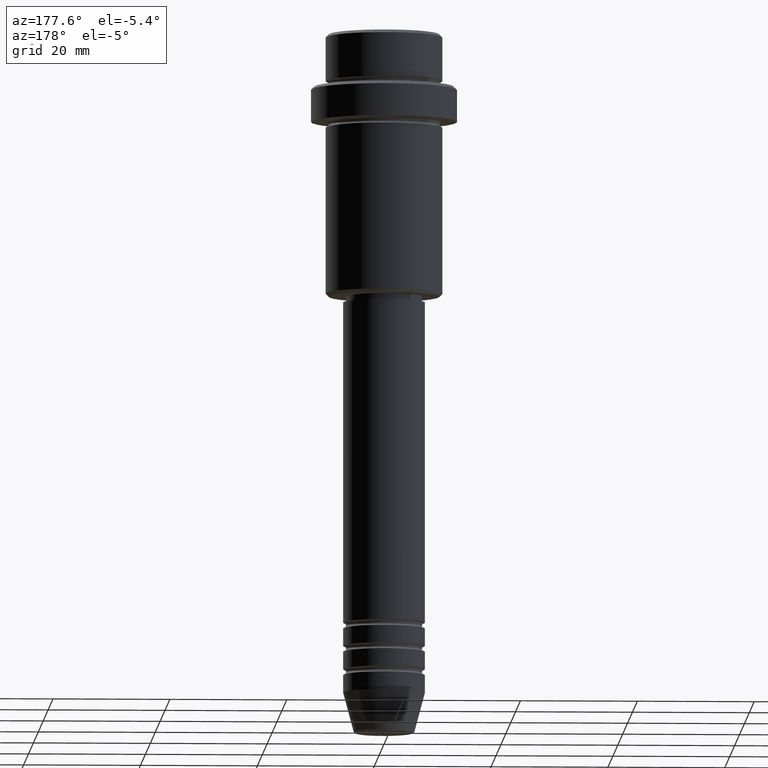
[diagram: clean part render]
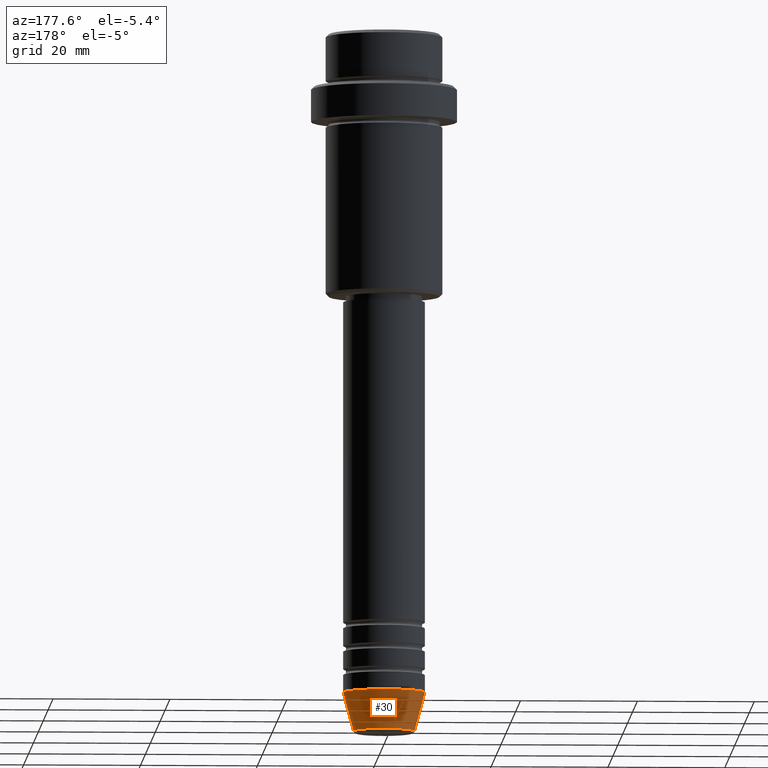
[diagram: same view with one face highlighted and labeled with its STEP entity id]
A machine part, auxiliary view. The second image highlights one B-rep face of the part: STEP entity #30.
In plain terms, the highlighted conical surface has half-angle 15 deg.
Its self-contained STEP definition (entity closure, byte-faithful):
#20 = ORIENTED_EDGE ( 'NONE', *, *, #736, .T. ) ;
#30 = ADVANCED_FACE ( 'NONE', ( #274 ), #979, .T. ) ;
#37 = EDGE_CURVE ( 'NONE', #141, #785, #720, .T. ) ;
#141 = VERTEX_POINT ( 'NONE', #1243 ) ;
#150 = CARTESIAN_POINT ( 'NONE',  ( -7.000000000000000000, 8.572527594031473190E-16, -112.9999999999999858 ) ) ;
#207 = VECTOR ( 'NONE', #699, 1000.000000000000000 ) ;
#210 = VECTOR ( 'NONE', #1263, 1000.000000000000000 ) ;
#274 = FACE_OUTER_BOUND ( 'NONE', #662, .T. ) ;
#289 = CARTESIAN_POINT ( 'NONE',  ( 7.000000000000000000, 0.000000000000000000, -112.9999999999999858 ) ) ;
#294 = DIRECTION ( 'NONE',  ( -0.000000000000000000, -0.000000000000000000, 1.000000000000000000 ) ) ;
#310 = CARTESIAN_POINT ( 'NONE',  ( -5.223655072137187716, 7.484830028987059188E-16, -119.6294095225512564 ) ) ;
#345 = VERTEX_POINT ( 'NONE', #1112 ) ;
#404 = AXIS2_PLACEMENT_3D ( 'NONE', #1254, #1358, #825 ) ;
#407 = CARTESIAN_POINT ( 'NONE',  ( 7.000000000000000000, 0.000000000000000000, -112.9999999999999858 ) ) ;
#494 = LINE ( 'NONE', #150, #207 ) ;
#586 = AXIS2_PLACEMENT_3D ( 'NONE', #1038, #294, #816 ) ;
#641 = CIRCLE ( 'NONE', #586, 7.000000000000000000 ) ;
#653 = ORIENTED_EDGE ( 'NONE', *, *, #37, .F. ) ;
#662 = EDGE_LOOP ( 'NONE', ( #1032, #20, #754, #653 ) ) ;
#699 = DIRECTION ( 'NONE',  ( -0.2588190451025214056, 3.169619151431772953E-17, 0.9659258262890680902 ) ) ;
#720 = LINE ( 'NONE', #407, #210 ) ;
#736 = EDGE_CURVE ( 'NONE', #963, #345, #494, .T. ) ;
#754 = ORIENTED_EDGE ( 'NONE', *, *, #836, .F. ) ;
#759 = DIRECTION ( 'NONE',  ( -0.000000000000000000, -0.000000000000000000, 1.000000000000000000 ) ) ;
#785 = VERTEX_POINT ( 'NONE', #289 ) ;
#802 = CIRCLE ( 'NONE', #952, 5.223655072137187716 ) ;
#816 = DIRECTION ( 'NONE',  ( 1.000000000000000000, 0.000000000000000000, 0.000000000000000000 ) ) ;
#825 = DIRECTION ( 'NONE',  ( 1.000000000000000000, 0.000000000000000000, 0.000000000000000000 ) ) ;
#836 = EDGE_CURVE ( 'NONE', #785, #345, #641, .T. ) ;
#952 = AXIS2_PLACEMENT_3D ( 'NONE', #1288, #759, #1413 ) ;
#963 = VERTEX_POINT ( 'NONE', #310 ) ;
#979 = CONICAL_SURFACE ( 'NONE', #404, 7.000000000000000000, 0.2617993877991501295 ) ;
#1020 = EDGE_CURVE ( 'NONE', #141, #963, #802, .T. ) ;
#1032 = ORIENTED_EDGE ( 'NONE', *, *, #1020, .T. ) ;
#1038 = CARTESIAN_POINT ( 'NONE',  ( 0.000000000000000000, 0.000000000000000000, -112.9999999999999858 ) ) ;
#1112 = CARTESIAN_POINT ( 'NONE',  ( -7.000000000000000000, 8.572527594031473190E-16, -112.9999999999999858 ) ) ;
#1243 = CARTESIAN_POINT ( 'NONE',  ( 5.223655072137187716, 0.000000000000000000, -119.6294095225512564 ) ) ;
#1254 = CARTESIAN_POINT ( 'NONE',  ( 0.000000000000000000, 0.000000000000000000, -112.9999999999999858 ) ) ;
#1263 = DIRECTION ( 'NONE',  ( 0.2588190451025214056, 0.000000000000000000, 0.9659258262890680902 ) ) ;
#1288 = CARTESIAN_POINT ( 'NONE',  ( 0.000000000000000000, 0.000000000000000000, -119.6294095225512564 ) ) ;
#1358 = DIRECTION ( 'NONE',  ( -0.000000000000000000, -0.000000000000000000, 1.000000000000000000 ) ) ;
#1413 = DIRECTION ( 'NONE',  ( 1.000000000000000000, 0.000000000000000000, 0.000000000000000000 ) ) ;